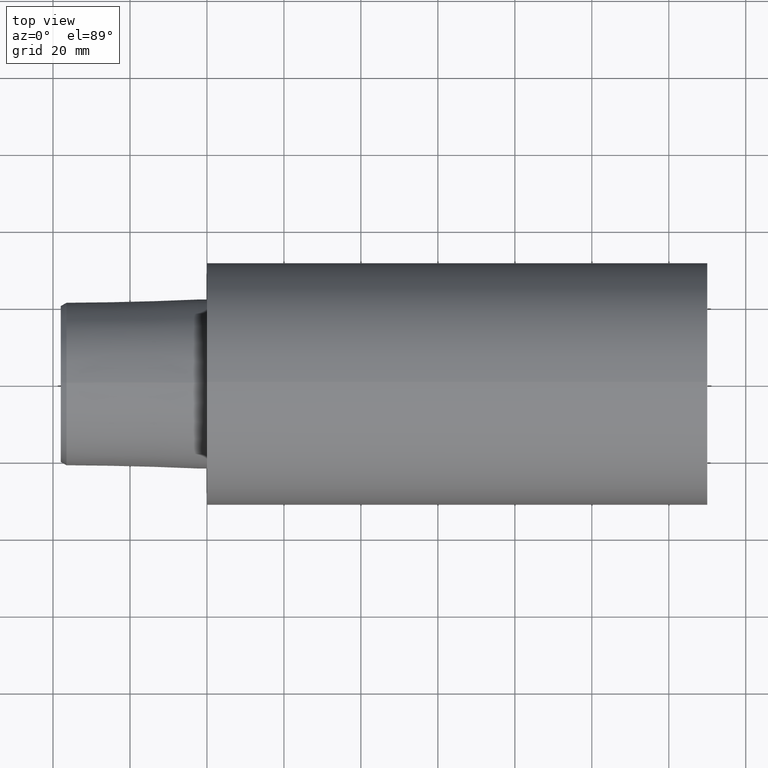
[diagram: clean part render]
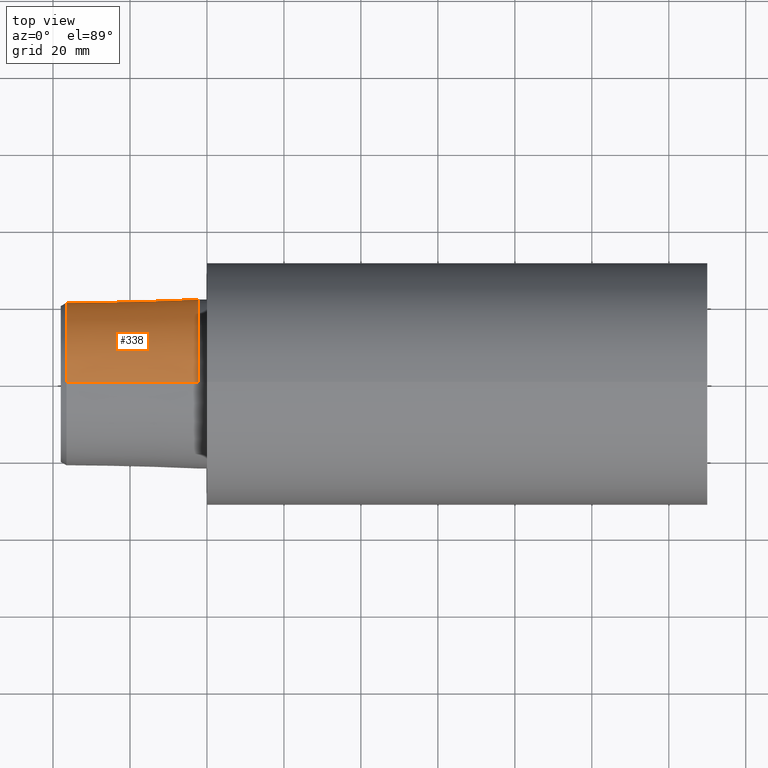
[diagram: same view with one face highlighted and labeled with its STEP entity id]
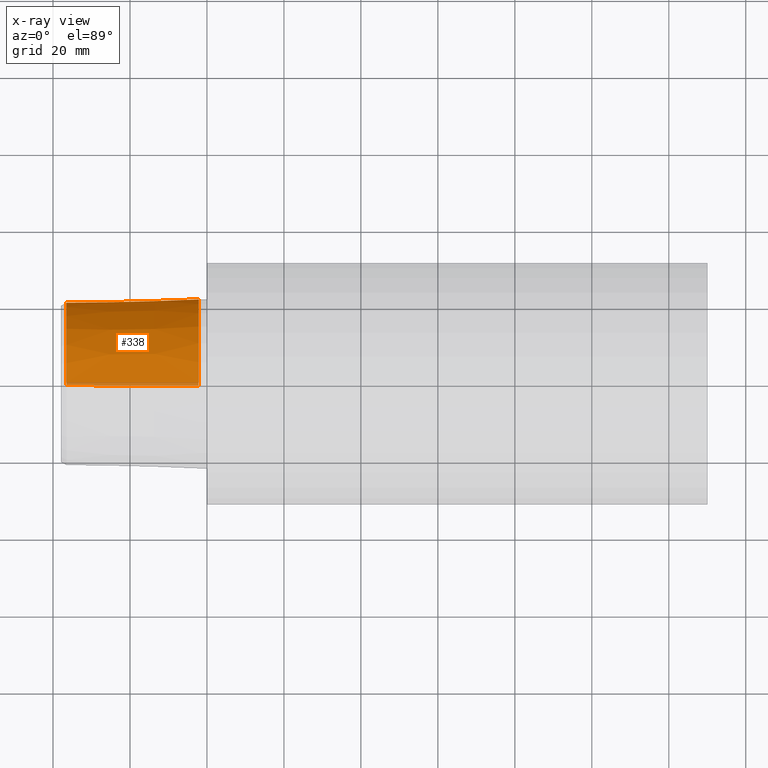
[diagram: x-ray of the same camera — body ghosted, the highlighted face saturated]
A machine part, top view. The second image highlights one B-rep face of the part: STEP entity #338.
The next image is the same camera in x-ray: the body ghosted, the highlighted face saturated — about 3% of this face is hidden behind the body in this view.
In plain terms, the highlighted conical surface has half-angle 1.432 deg.
Its self-contained STEP definition (entity closure, byte-faithful):
#3 = DIRECTION ( 'NONE',  ( 0.000000000000000000, 0.000000000000000000, 1.000000000000000000 ) ) ;
#8 = CONICAL_SURFACE ( 'NONE', #210, 22.07078639032614120, 0.02499311507610003230 ) ;
#16 = VERTEX_POINT ( 'NONE', #222 ) ;
#21 = CARTESIAN_POINT ( 'NONE',  ( -2.199999999394708361, 2.702891790757786195E-15, 22.07078639032614120 ) ) ;
#28 = EDGE_LOOP ( 'NONE', ( #275, #311, #319, #343 ) ) ;
#37 = CARTESIAN_POINT ( 'NONE',  ( -2.199999999394708361, 0.000000000000000000, -22.07078639032614120 ) ) ;
#47 = EDGE_CURVE ( 'NONE', #16, #208, #279, .T. ) ;
#50 = VERTEX_POINT ( 'NONE', #83 ) ;
#51 = DIRECTION ( 'NONE',  ( -1.000000000000000000, 0.000000000000000000, 0.000000000000000000 ) ) ;
#65 = LINE ( 'NONE', #37, #280 ) ;
#83 = CARTESIAN_POINT ( 'NONE',  ( -36.49999996440870120, 0.000000000000000000, -21.21334400120073482 ) ) ;
#89 = CARTESIAN_POINT ( 'NONE',  ( -2.199999999394708361, 0.000000000000000000, 0.000000000000000000 ) ) ;
#100 = AXIS2_PLACEMENT_3D ( 'NONE', #188, #137, #304 ) ;
#137 = DIRECTION ( 'NONE',  ( -1.000000000000000000, 0.000000000000000000, 0.000000000000000000 ) ) ;
#161 = EDGE_CURVE ( 'NONE', #253, #50, #179, .T. ) ;
#171 = FACE_OUTER_BOUND ( 'NONE', #28, .T. ) ;
#179 = CIRCLE ( 'NONE', #100, 21.21334400120073482 ) ;
#188 = CARTESIAN_POINT ( 'NONE',  ( -36.49999996440870120, 0.000000000000000000, 0.000000000000000000 ) ) ;
#201 = DIRECTION ( 'NONE',  ( 1.000000000000000000, 0.000000000000000000, 0.000000000000000000 ) ) ;
#206 = CARTESIAN_POINT ( 'NONE',  ( -2.199999999394708361, 2.702891790757786195E-15, -22.07078639032614120 ) ) ;
#208 = VERTEX_POINT ( 'NONE', #206 ) ;
#210 = AXIS2_PLACEMENT_3D ( 'NONE', #89, #201, #344 ) ;
#222 = CARTESIAN_POINT ( 'NONE',  ( -2.199999999394708361, 0.000000000000000000, 22.07078639032614120 ) ) ;
#224 = VECTOR ( 'NONE', #296, 1000.000000000000114 ) ;
#253 = VERTEX_POINT ( 'NONE', #332 ) ;
#275 = ORIENTED_EDGE ( 'NONE', *, *, #161, .F. ) ;
#279 = CIRCLE ( 'NONE', #328, 22.07078639032614120 ) ;
#280 = VECTOR ( 'NONE', #313, 1000.000000000000114 ) ;
#296 = DIRECTION ( 'NONE',  ( 0.9996876883571774730, 3.060455192797006293E-18, 0.02499051314164881313 ) ) ;
#299 = LINE ( 'NONE', #21, #224 ) ;
#304 = DIRECTION ( 'NONE',  ( 0.000000000000000000, 0.000000000000000000, 1.000000000000000000 ) ) ;
#311 = ORIENTED_EDGE ( 'NONE', *, *, #352, .T. ) ;
#313 = DIRECTION ( 'NONE',  ( 0.9996876883571774730, 0.000000000000000000, -0.02499051314164881313 ) ) ;
#316 = EDGE_CURVE ( 'NONE', #50, #208, #65, .T. ) ;
#319 = ORIENTED_EDGE ( 'NONE', *, *, #47, .T. ) ;
#328 = AXIS2_PLACEMENT_3D ( 'NONE', #331, #51, #3 ) ;
#331 = CARTESIAN_POINT ( 'NONE',  ( -2.199999999394708361, 0.000000000000000000, 0.000000000000000000 ) ) ;
#332 = CARTESIAN_POINT ( 'NONE',  ( -36.49999996440870120, 2.650388586893000642E-15, 21.21334400120073482 ) ) ;
#338 = ADVANCED_FACE ( 'NONE', ( #171 ), #8, .T. ) ;
#343 = ORIENTED_EDGE ( 'NONE', *, *, #316, .F. ) ;
#344 = DIRECTION ( 'NONE',  ( 0.000000000000000000, 0.000000000000000000, -1.000000000000000000 ) ) ;
#352 = EDGE_CURVE ( 'NONE', #253, #16, #299, .T. ) ;